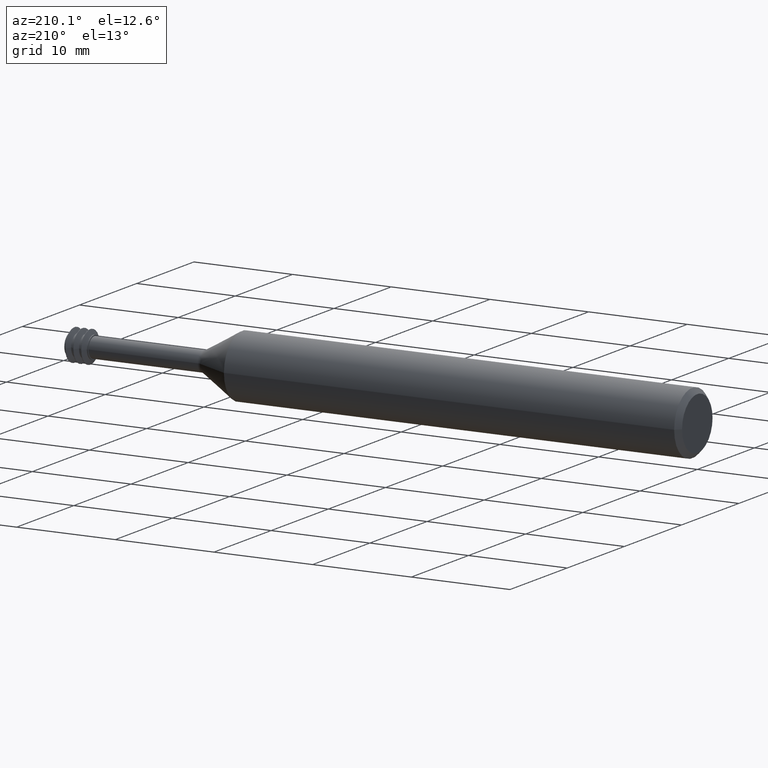
[diagram: clean part render]
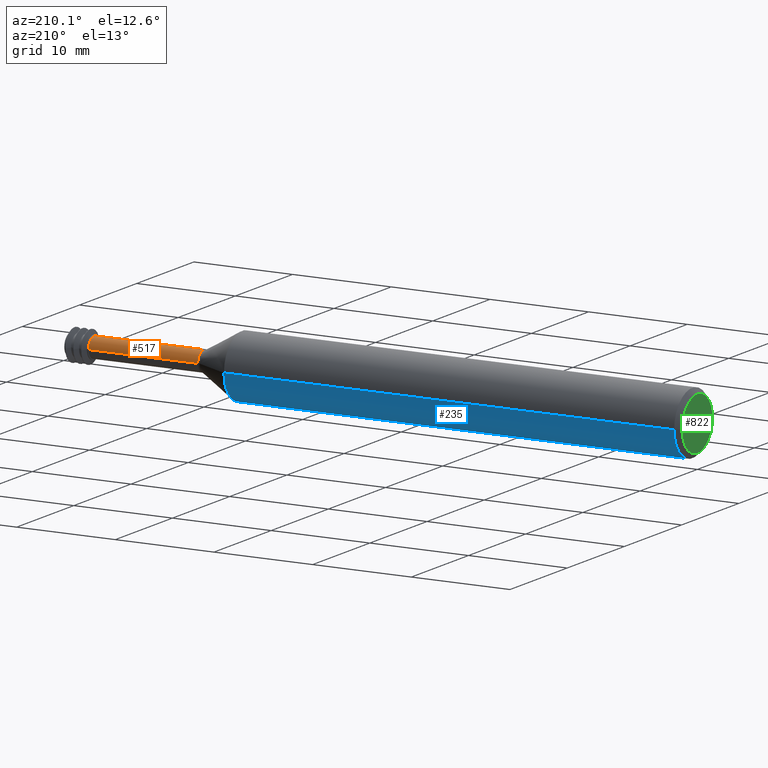
[diagram: same view with three faces highlighted in distinct colors, each labeled with its STEP entity id]
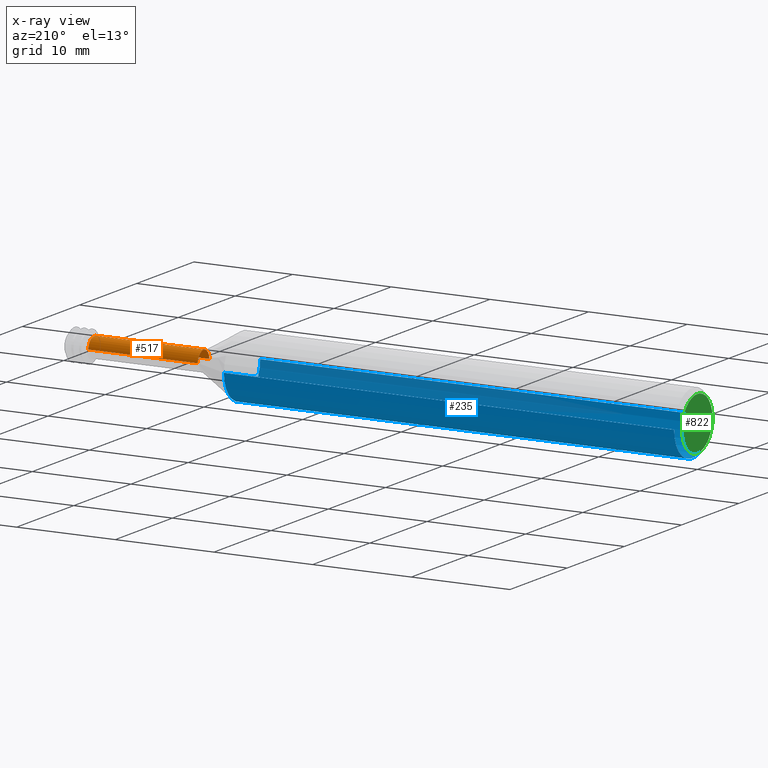
[diagram: x-ray of the same camera — body ghosted, the three highlighted faces saturated]
A machine part, auxiliary view with three faces highlighted in distinct colors.
The next image is the same camera in x-ray (body ghosted, the three faces saturated) — at least one of them is partly hidden behind the body in this view.
Their STEP definitions:

[orange] entity #517 — the highlighted cylindrical surface (edge-blend (fillet) strip) has radius 1.016 mm, axis along (-1, 0, -0).
#4 = CARTESIAN_POINT ( 'NONE',  ( 2.406000000000000139, -0.04000000000000004247, 0.000000000000000000 ) ) ;
#67 = EDGE_LOOP ( 'NONE', ( #121, #662, #177, #457 ) ) ;
#80 = CARTESIAN_POINT ( 'NONE',  ( 1.970000000000000195, 5.240627950189079767E-18, 0.000000000000000000 ) ) ;
#121 = ORIENTED_EDGE ( 'NONE', *, *, #575, .F. ) ;
#131 = CARTESIAN_POINT ( 'NONE',  ( 1.970000000000000195, -0.04000000000000008410, 0.000000000000000000 ) ) ;
#177 = ORIENTED_EDGE ( 'NONE', *, *, #488, .F. ) ;
#219 = DIRECTION ( 'NONE',  ( -1.000000000000000000, 3.312725351696573770E-18, -0.000000000000000000 ) ) ;
#231 = CARTESIAN_POINT ( 'NONE',  ( 2.406000000000000139, 3.796279696849373925E-18, 0.000000000000000000 ) ) ;
#248 = AXIS2_PLACEMENT_3D ( 'NONE', #231, #219, #391 ) ;
#284 = VECTOR ( 'NONE', #317, 39.37007874015748143 ) ;
#298 = VERTEX_POINT ( 'NONE', #444 ) ;
#314 = VERTEX_POINT ( 'NONE', #131 ) ;
#317 = DIRECTION ( 'NONE',  ( -1.000000000000000000, 3.312725351696573770E-18, -0.000000000000000000 ) ) ;
#358 = EDGE_CURVE ( 'NONE', #696, #314, #605, .T. ) ;
#380 = CARTESIAN_POINT ( 'NONE',  ( 2.406000000000000139, 0.04000000000000004247, 4.898587196589418160E-18 ) ) ;
#391 = DIRECTION ( 'NONE',  ( 0.000000000000000000, -1.000000000000000000, 0.000000000000000000 ) ) ;
#428 = EDGE_CURVE ( 'NONE', #298, #560, #624, .T. ) ;
#444 = CARTESIAN_POINT ( 'NONE',  ( 2.406000000000000139, 0.04000000000000004247, 4.898587196589418160E-18 ) ) ;
#457 = ORIENTED_EDGE ( 'NONE', *, *, #358, .F. ) ;
#488 = EDGE_CURVE ( 'NONE', #314, #560, #857, .T. ) ;
#517 = ADVANCED_FACE ( 'NONE', ( #945 ), #706, .T. ) ;
#533 = AXIS2_PLACEMENT_3D ( 'NONE', #80, #620, #782 ) ;
#550 = VECTOR ( 'NONE', #845, 39.37007874015748143 ) ;
#560 = VERTEX_POINT ( 'NONE', #732 ) ;
#575 = EDGE_CURVE ( 'NONE', #298, #696, #579, .T. ) ;
#579 = CIRCLE ( 'NONE', #966, 0.04000000000000004247 ) ;
#605 = LINE ( 'NONE', #1001, #550 ) ;
#620 = DIRECTION ( 'NONE',  ( -1.000000000000000000, 3.312725351696573770E-18, -0.000000000000000000 ) ) ;
#624 = LINE ( 'NONE', #380, #284 ) ;
#662 = ORIENTED_EDGE ( 'NONE', *, *, #428, .T. ) ;
#696 = VERTEX_POINT ( 'NONE', #4 ) ;
#706 = CYLINDRICAL_SURFACE ( 'NONE', #248, 0.04000000000000004247 ) ;
#732 = CARTESIAN_POINT ( 'NONE',  ( 1.970000000000000195, 0.04000000000000010492, 5.103676647117482034E-18 ) ) ;
#782 = DIRECTION ( 'NONE',  ( 0.000000000000000000, -1.000000000000000000, 0.000000000000000000 ) ) ;
#812 = DIRECTION ( 'NONE',  ( 0.000000000000000000, 1.000000000000000000, 0.000000000000000000 ) ) ;
#845 = DIRECTION ( 'NONE',  ( -1.000000000000000000, 3.312725351696573770E-18, -0.000000000000000000 ) ) ;
#857 = CIRCLE ( 'NONE', #533, 0.04000000000000009104 ) ;
#899 = DIRECTION ( 'NONE',  ( 1.000000000000000000, -2.239313081137374464E-19, 0.000000000000000000 ) ) ;
#945 = FACE_OUTER_BOUND ( 'NONE', #67, .T. ) ;
#966 = AXIS2_PLACEMENT_3D ( 'NONE', #981, #899, #812 ) ;
#981 = CARTESIAN_POINT ( 'NONE',  ( 2.406000000000000139, 3.796279696849373925E-18, 0.000000000000000000 ) ) ;
#1001 = CARTESIAN_POINT ( 'NONE',  ( 2.406000000000000139, -0.04000000000000004247, 0.000000000000000000 ) ) ;

[blue] entity #235 — the highlighted cylindrical surface (edge-blend (fillet) strip) has radius 3.1712 mm, axis along (-1, 0, -0).
#7 = CARTESIAN_POINT ( 'NONE',  ( 1.816336759167003656, 0.1248500000000000026, 1.528971528735470422E-17 ) ) ;
#29 = CYLINDRICAL_SURFACE ( 'NONE', #970, 0.1248500000000000026 ) ;
#41 = ORIENTED_EDGE ( 'NONE', *, *, #455, .T. ) ;
#49 = VERTEX_POINT ( 'NONE', #7 ) ;
#66 = EDGE_CURVE ( 'NONE', #118, #393, #719, .T. ) ;
#99 = VECTOR ( 'NONE', #106, 39.37007874015748143 ) ;
#101 = LINE ( 'NONE', #893, #99 ) ;
#106 = DIRECTION ( 'NONE',  ( -1.000000000000000000, 3.312725351696573770E-18, -0.000000000000000000 ) ) ;
#116 = AXIS2_PLACEMENT_3D ( 'NONE', #870, #237, #464 ) ;
#118 = VERTEX_POINT ( 'NONE', #733 ) ;
#161 = DIRECTION ( 'NONE',  ( -1.000000000000000000, 3.312725351696573770E-18, -0.000000000000000000 ) ) ;
#182 = EDGE_CURVE ( 'NONE', #49, #979, #101, .T. ) ;
#235 = ADVANCED_FACE ( 'NONE', ( #421 ), #29, .T. ) ;
#237 = DIRECTION ( 'NONE',  ( -1.000000000000000000, 3.312725351696573770E-18, -0.000000000000000000 ) ) ;
#267 = AXIS2_PLACEMENT_3D ( 'NONE', #637, #161, #1030 ) ;
#272 = DIRECTION ( 'NONE',  ( -1.000000000000000000, 3.312725351696573770E-18, -0.000000000000000000 ) ) ;
#321 = VECTOR ( 'NONE', #808, 39.37007874015748143 ) ;
#337 = ORIENTED_EDGE ( 'NONE', *, *, #66, .T. ) ;
#341 = CARTESIAN_POINT ( 'NONE',  ( 2.406000000000000139, 3.796279696849373925E-18, 0.000000000000000000 ) ) ;
#351 = ORIENTED_EDGE ( 'NONE', *, *, #500, .F. ) ;
#364 = CARTESIAN_POINT ( 'NONE',  ( 0.02000000000000005940, -0.1248499999999999610, 1.528971528735470422E-17 ) ) ;
#393 = VERTEX_POINT ( 'NONE', #364 ) ;
#421 = FACE_OUTER_BOUND ( 'NONE', #483, .T. ) ;
#455 = EDGE_CURVE ( 'NONE', #49, #118, #957, .T. ) ;
#464 = DIRECTION ( 'NONE',  ( 0.000000000000000000, -1.000000000000000000, 0.000000000000000000 ) ) ;
#483 = EDGE_LOOP ( 'NONE', ( #954, #41, #337, #351 ) ) ;
#500 = EDGE_CURVE ( 'NONE', #979, #393, #940, .T. ) ;
#637 = CARTESIAN_POINT ( 'NONE',  ( 1.816336759167003656, 5.749672063720403816E-18, 0.000000000000000000 ) ) ;
#661 = DIRECTION ( 'NONE',  ( 0.000000000000000000, -1.000000000000000000, 0.000000000000000000 ) ) ;
#719 = LINE ( 'NONE', #883, #321 ) ;
#733 = CARTESIAN_POINT ( 'NONE',  ( 1.816336759167003656, -0.1248500000000000026, 0.000000000000000000 ) ) ;
#808 = DIRECTION ( 'NONE',  ( -1.000000000000000000, 3.312725351696573770E-18, -0.000000000000000000 ) ) ;
#848 = CARTESIAN_POINT ( 'NONE',  ( 0.02000000000000005940, 0.1248500000000000026, 0.000000000000000000 ) ) ;
#870 = CARTESIAN_POINT ( 'NONE',  ( 0.02000000000000005940, 1.170044238599739941E-17, 0.000000000000000000 ) ) ;
#883 = CARTESIAN_POINT ( 'NONE',  ( 2.406000000000000139, -0.1248500000000000026, 0.000000000000000000 ) ) ;
#893 = CARTESIAN_POINT ( 'NONE',  ( 2.406000000000000139, 0.1248500000000000026, 1.528971528735470422E-17 ) ) ;
#940 = CIRCLE ( 'NONE', #116, 0.1248500000000000026 ) ;
#954 = ORIENTED_EDGE ( 'NONE', *, *, #182, .F. ) ;
#957 = CIRCLE ( 'NONE', #267, 0.1248500000000000026 ) ;
#970 = AXIS2_PLACEMENT_3D ( 'NONE', #341, #272, #661 ) ;
#979 = VERTEX_POINT ( 'NONE', #848 ) ;
#1030 = DIRECTION ( 'NONE',  ( 0.000000000000000000, -1.000000000000000000, 0.000000000000000000 ) ) ;

[green] entity #822 — the highlighted planar face has unit normal (1, -0, 0).
#45 = EDGE_CURVE ( 'NONE', #763, #133, #813, .T. ) ;
#78 = CARTESIAN_POINT ( 'NONE',  ( -3.473392531253858003E-19, -0.1048499999999999988, 1.406506848820735372E-17 ) ) ;
#133 = VERTEX_POINT ( 'NONE', #194 ) ;
#142 = DIRECTION ( 'NONE',  ( -3.312725351696573770E-18, -1.000000000000000000, 0.000000000000000000 ) ) ;
#183 = PLANE ( 'NONE',  #204 ) ;
#194 = CARTESIAN_POINT ( 'NONE',  ( 3.473392531253858485E-19, 0.1048500000000000265, 0.000000000000000000 ) ) ;
#204 = AXIS2_PLACEMENT_3D ( 'NONE', #332, #589, #760 ) ;
#300 = EDGE_CURVE ( 'NONE', #133, #763, #582, .T. ) ;
#332 = CARTESIAN_POINT ( 'NONE',  ( 1.828541742163614243E-19, 0.1048500000000000126, 0.000000000000000000 ) ) ;
#404 = CARTESIAN_POINT ( 'NONE',  ( 0.000000000000000000, 1.176669689303133088E-17, 0.000000000000000000 ) ) ;
#435 = FACE_OUTER_BOUND ( 'NONE', #753, .T. ) ;
#566 = ORIENTED_EDGE ( 'NONE', *, *, #300, .T. ) ;
#582 = CIRCLE ( 'NONE', #1000, 0.1048500000000000126 ) ;
#589 = DIRECTION ( 'NONE',  ( 1.000000000000000000, -3.312725351696573770E-18, 0.000000000000000000 ) ) ;
#596 = DIRECTION ( 'NONE',  ( -1.000000000000000000, 3.312725351696573770E-18, -0.000000000000000000 ) ) ;
#644 = DIRECTION ( 'NONE',  ( -1.000000000000000000, 3.312725351696573770E-18, -0.000000000000000000 ) ) ;
#753 = EDGE_LOOP ( 'NONE', ( #566, #775 ) ) ;
#760 = DIRECTION ( 'NONE',  ( 3.312725351696573770E-18, 1.000000000000000000, 0.000000000000000000 ) ) ;
#763 = VERTEX_POINT ( 'NONE', #78 ) ;
#775 = ORIENTED_EDGE ( 'NONE', *, *, #45, .T. ) ;
#813 = CIRCLE ( 'NONE', #834, 0.1048500000000000126 ) ;
#822 = ADVANCED_FACE ( 'NONE', ( #435 ), #183, .F. ) ;
#834 = AXIS2_PLACEMENT_3D ( 'NONE', #404, #644, #142 ) ;
#861 = DIRECTION ( 'NONE',  ( -3.312725351696573770E-18, -1.000000000000000000, 0.000000000000000000 ) ) ;
#930 = CARTESIAN_POINT ( 'NONE',  ( 0.000000000000000000, 1.176669689303133088E-17, 0.000000000000000000 ) ) ;
#1000 = AXIS2_PLACEMENT_3D ( 'NONE', #930, #596, #861 ) ;